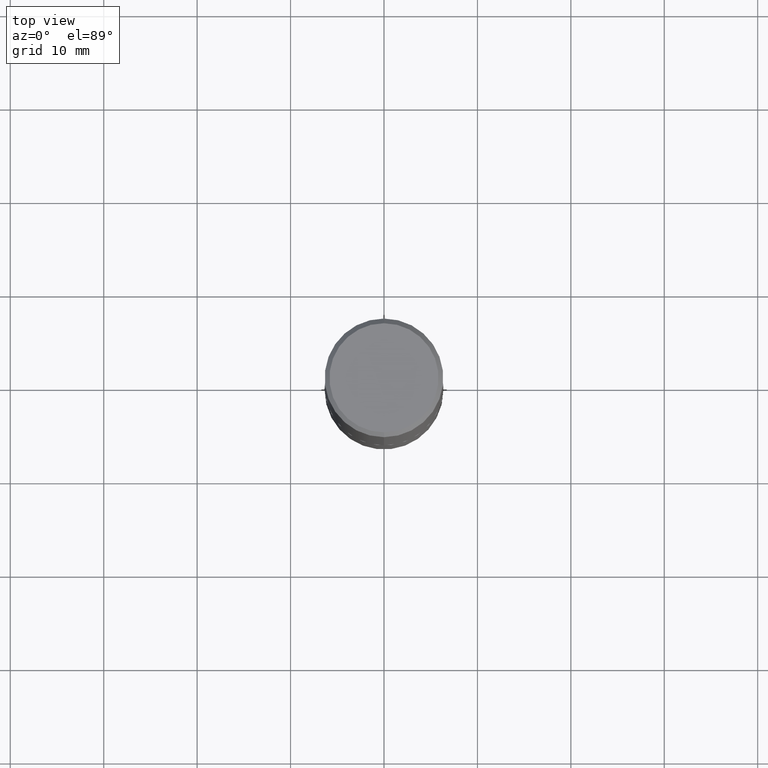
[diagram: clean part render]
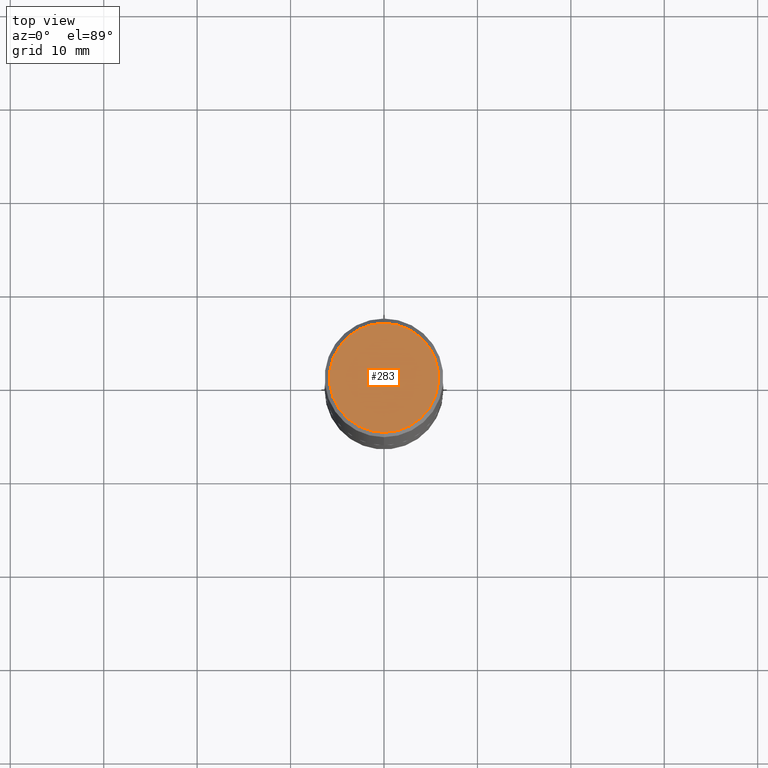
[diagram: same view with one face highlighted and labeled with its STEP entity id]
A machine part, top view. The second image highlights one B-rep face of the part: STEP entity #283.
In plain terms, the highlighted planar face has unit normal (0, -0, -1).
Its self-contained STEP definition (entity closure, byte-faithful):
#7 = CARTESIAN_POINT ( 'NONE',  ( -1.646519519465166770E-15, -0.2299999999999998990, 8.535229244571821279E-16 ) ) ;
#20 = DIRECTION ( 'NONE',  ( -2.446592051190030557E-29, 3.489872788065002235E-15, 1.000000000000000000 ) ) ;
#42 = DIRECTION ( 'NONE',  ( 6.982962677686265922E-15, 1.000000000000000000, -3.489872788065001841E-15 ) ) ;
#47 = AXIS2_PLACEMENT_3D ( 'NONE', #51, #20, #334 ) ;
#51 = CARTESIAN_POINT ( 'NONE',  ( -1.244145472082398885E-45, 1.774676503711654950E-31, 5.085218320223195210E-17 ) ) ;
#76 = CARTESIAN_POINT ( 'NONE',  ( 1.606081415867840476E-15, 0.2299999999999998990, -7.772446496538342614E-16 ) ) ;
#79 = AXIS2_PLACEMENT_3D ( 'NONE', #76, #409, #42 ) ;
#100 = VERTEX_POINT ( 'NONE', #7 ) ;
#134 = EDGE_CURVE ( 'NONE', #164, #100, #279, .T. ) ;
#164 = VERTEX_POINT ( 'NONE', #285 ) ;
#166 = DIRECTION ( 'NONE',  ( -6.982962677686265922E-15, -1.000000000000000000, 3.489872788065002235E-15 ) ) ;
#175 = CIRCLE ( 'NONE', #47, 0.2299999999999998990 ) ;
#178 = ORIENTED_EDGE ( 'NONE', *, *, #214, .T. ) ;
#214 = EDGE_CURVE ( 'NONE', #100, #164, #175, .T. ) ;
#224 = ORIENTED_EDGE ( 'NONE', *, *, #134, .T. ) ;
#235 = DIRECTION ( 'NONE',  ( -2.446592051190030557E-29, 3.489872788065002235E-15, 1.000000000000000000 ) ) ;
#267 = CARTESIAN_POINT ( 'NONE',  ( -1.244145472082398885E-45, 1.774676503711654950E-31, 5.085218320223195210E-17 ) ) ;
#272 = AXIS2_PLACEMENT_3D ( 'NONE', #267, #235, #166 ) ;
#279 = CIRCLE ( 'NONE', #272, 0.2299999999999998990 ) ;
#283 = ADVANCED_FACE ( 'NONE', ( #365 ), #369, .F. ) ;
#285 = CARTESIAN_POINT ( 'NONE',  ( 1.675911042644703774E-15, 0.2299999999999998990, -7.518185580527182730E-16 ) ) ;
#334 = DIRECTION ( 'NONE',  ( -6.982962677686265922E-15, -1.000000000000000000, 3.489872788065002235E-15 ) ) ;
#354 = EDGE_LOOP ( 'NONE', ( #224, #178 ) ) ;
#365 = FACE_OUTER_BOUND ( 'NONE', #354, .T. ) ;
#369 = PLANE ( 'NONE',  #79 ) ;
#409 = DIRECTION ( 'NONE',  ( 2.446592051190030277E-29, -3.489872788065001841E-15, -1.000000000000000000 ) ) ;